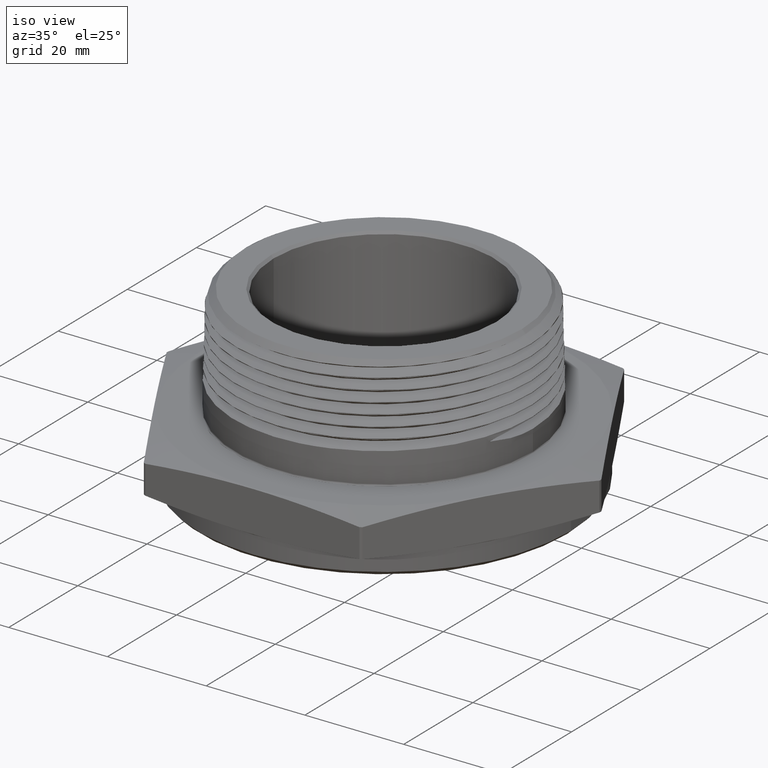
[diagram: clean part render]
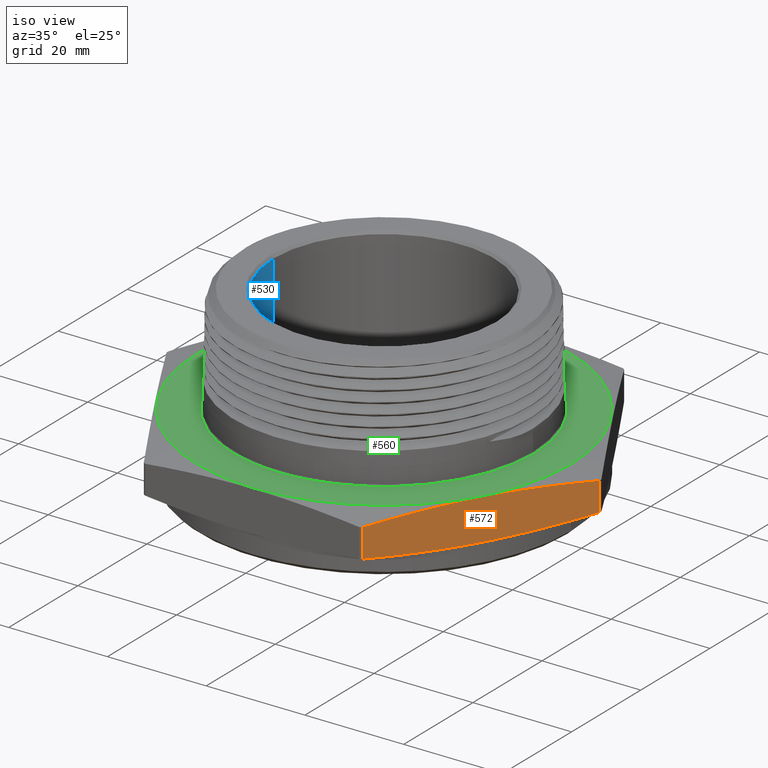
[diagram: same view with three faces highlighted in distinct colors, each labeled with its STEP entity id]
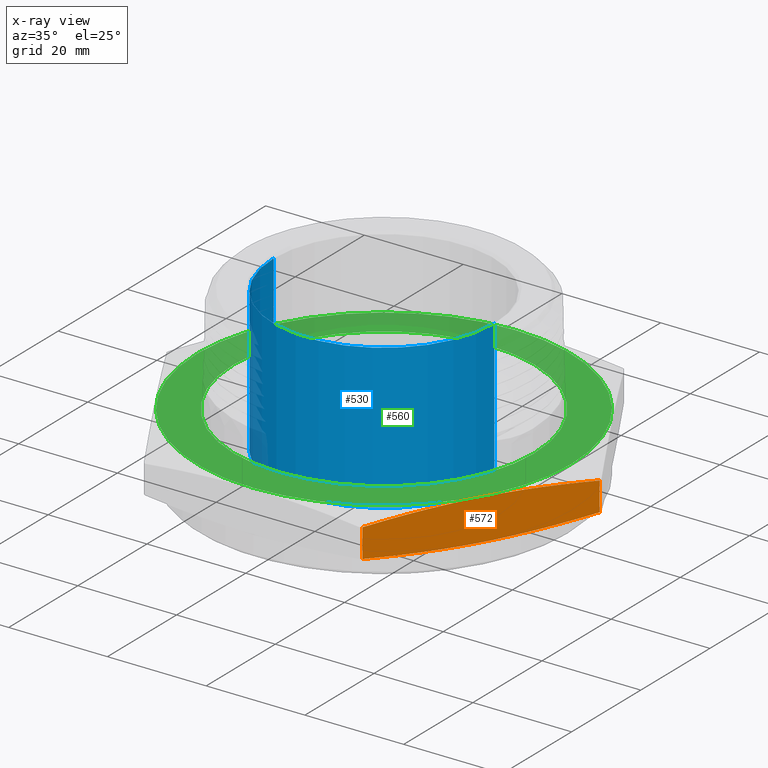
[diagram: x-ray of the same camera — body ghosted, the three highlighted faces saturated]
A machine part, iso view with three faces highlighted in distinct colors.
The next image is the same camera in x-ray (body ghosted, the three faces saturated) — at least one of them is partly hidden behind the body in this view.
Their STEP definitions:

[orange] entity #572 — the highlighted planar face has unit normal (-0.866, 0.5, 0).
#526 = VERTEX_POINT ( 'NONE', #7903 ) ;
#572 = ADVANCED_FACE ( 'NONE', ( #5911 ), #7051, .F. ) ;
#727 = EDGE_LOOP ( 'NONE', ( #6140, #6125, #6128, #6189 ) ) ;
#1537 = CARTESIAN_POINT ( 'NONE',  ( 0.8720570199394853700, -1.489552934367705000, 0.05017414803627098100 ) ) ;
#1539 = CARTESIAN_POINT ( 'NONE',  ( 0.8720570199394853700, -1.489552934367705000, 0.2798258519637287200 ) ) ;
#1540 = CARTESIAN_POINT ( 'NONE',  ( 1.726019191413829900, -0.01044706563229453500, 0.05017414803627055100 ) ) ;
#3600 = EDGE_CURVE ( 'NONE', #6295, #6293, #5953, .T. ) ;
#3605 = EDGE_CURVE ( 'NONE', #6296, #526, #5959, .T. ) ;
#3613 = EDGE_CURVE ( 'NONE', #526, #6295, #7774, .T. ) ;
#3614 = EDGE_CURVE ( 'NONE', #6293, #6296, #7775, .T. ) ;
#3749 = AXIS2_PLACEMENT_3D ( 'NONE', #7050, #7045, #7041 ) ;
#5911 = FACE_OUTER_BOUND ( 'NONE', #727, .T. ) ;
#5953 = LINE ( 'NONE', #7356, #5955 ) ;
#5955 = VECTOR ( 'NONE', #7354, 39.37007874015748100 ) ;
#5959 = LINE ( 'NONE', #7370, #5963 ) ;
#5963 = VECTOR ( 'NONE', #7366, 39.37007874015748100 ) ;
#6125 = ORIENTED_EDGE ( 'NONE', *, *, #3605, .T. ) ;
#6128 = ORIENTED_EDGE ( 'NONE', *, *, #3613, .T. ) ;
#6140 = ORIENTED_EDGE ( 'NONE', *, *, #3614, .T. ) ;
#6189 = ORIENTED_EDGE ( 'NONE', *, *, #3600, .T. ) ;
#6293 = VERTEX_POINT ( 'NONE', #1537 ) ;
#6295 = VERTEX_POINT ( 'NONE', #1539 ) ;
#6296 = VERTEX_POINT ( 'NONE', #1540 ) ;
#7041 = DIRECTION ( 'NONE',  ( -0.5000000000000000000, -0.8660254037844386000, 0.0000000000000000000 ) ) ;
#7045 = DIRECTION ( 'NONE',  ( -0.8660254037844387100, 0.5000000000000001100, 0.0000000000000000000 ) ) ;
#7050 = CARTESIAN_POINT ( 'NONE',  ( 0.8660254037844384900, -1.499999999999999600, 0.3300000000000000200 ) ) ;
#7051 = PLANE ( 'NONE',  #3749 ) ;
#7354 = DIRECTION ( 'NONE',  ( -1.254986547952384500E-016, -0.0000000000000000000, -1.000000000000000000 ) ) ;
#7356 = CARTESIAN_POINT ( 'NONE',  ( 0.8720570199394853700, -1.489552934367705000, 5.358555188302549400E-017 ) ) ;
#7366 = DIRECTION ( 'NONE',  ( 1.254986547952384500E-016, 0.0000000000000000000, 1.000000000000000000 ) ) ;
#7370 = CARTESIAN_POINT ( 'NONE',  ( 1.726019191413829900, -0.01044706563229453500, -5.358555188302549400E-017 ) ) ;
#7386 = CARTESIAN_POINT ( 'NONE',  ( 1.726019191413829900, -0.01044706563229453500, 0.2798258519637286700 ) ) ;
#7396 = CARTESIAN_POINT ( 'NONE',  ( 1.654855677124301000, -0.1337058880269122500, 0.2947932723352764100 ) ) ;
#7404 = CARTESIAN_POINT ( 'NONE',  ( 0.9432205342290142000, -1.366294111973088000, 0.03520672766472290900 ) ) ;
#7406 = CARTESIAN_POINT ( 'NONE',  ( 1.014384048518542900, -1.243035289578470200, 0.02307374582524318900 ) ) ;
#7407 = CARTESIAN_POINT ( 'NONE',  ( 1.583692162834772700, -0.2569647104215296300, 0.3069262541747560000 ) ) ;
#7408 = CARTESIAN_POINT ( 'NONE',  ( 1.441365134255714800, -0.5034823552107645700, 0.3234912303191853100 ) ) ;
#7409 = CARTESIAN_POINT ( 'NONE',  ( 1.299038105676656700, -0.7499999999999996700, 0.3322576384474138500 ) ) ;
#7410 = CARTESIAN_POINT ( 'NONE',  ( 1.156711077097599900, -0.9965176447892344400, 0.3234912303191854700 ) ) ;
#7411 = CARTESIAN_POINT ( 'NONE',  ( 1.014384048518542900, -1.243035289578469500, 0.3069262541747560500 ) ) ;
#7412 = CARTESIAN_POINT ( 'NONE',  ( 0.9432205342290138600, -1.366294111973087100, 0.2947932723352763000 ) ) ;
#7413 = CARTESIAN_POINT ( 'NONE',  ( 0.8720570199394853700, -1.489552934367705000, 0.2798258519637287200 ) ) ;
#7414 = CARTESIAN_POINT ( 'NONE',  ( 0.8720570199394853700, -1.489552934367705000, 0.05017414803627098100 ) ) ;
#7416 = CARTESIAN_POINT ( 'NONE',  ( 1.156711077097600300, -0.9965176447892351000, 0.006508769680813815200 ) ) ;
#7417 = CARTESIAN_POINT ( 'NONE',  ( 1.299038105676657800, -0.7499999999999996700, -0.002257638447414727400 ) ) ;
#7418 = CARTESIAN_POINT ( 'NONE',  ( 1.441365134255715000, -0.5034823552107650100, 0.006508769680813745800 ) ) ;
#7419 = CARTESIAN_POINT ( 'NONE',  ( 1.583692162834772200, -0.2569647104215300200, 0.02307374582524308200 ) ) ;
#7420 = CARTESIAN_POINT ( 'NONE',  ( 1.654855677124301000, -0.1337058880269123800, 0.03520672766472282600 ) ) ;
#7421 = CARTESIAN_POINT ( 'NONE',  ( 1.726019191413829900, -0.01044706563229453500, 0.05017414803627055100 ) ) ;
#7774 = B_SPLINE_CURVE_WITH_KNOTS ( 'NONE', 3,
 ( #7386, #7396, #7407, #7408, #7409, #7410, #7411, #7412, #7413 ),
 .UNSPECIFIED., .F., .F.,
 ( 4, 2, 1, 2, 4 ),
 ( 1.901761468285938300E-006, 0.01084722133919245900, 0.02169254091691663300, 0.03253786049464079500, 0.04338318007236498200 ),
 .UNSPECIFIED. ) ;
#7775 = B_SPLINE_CURVE_WITH_KNOTS ( 'NONE', 3,
 ( #7414, #7404, #7406, #7416, #7417, #7418, #7419, #7420, #7421 ),
 .UNSPECIFIED., .F., .F.,
 ( 4, 2, 1, 2, 4 ),
 ( 1.901761468408008900E-006, 0.01084722133919258100, 0.02169254091691675400, 0.03253786049464092700, 0.04338318007236510000 ),
 .UNSPECIFIED. ) ;
#7903 = CARTESIAN_POINT ( 'NONE',  ( 1.726019191413829900, -0.01044706563229453500, 0.2798258519637286700 ) ) ;

[blue] entity #530 — the highlighted cylindrical surface (partial cylindrical patch) has radius 22.352 mm, axis along (-0, -0, -1).
#530 = ADVANCED_FACE ( 'NONE', ( #817 ), #819, .F. ) ;
#597 = VERTEX_POINT ( 'NONE', #7019 ) ;
#635 = VERTEX_POINT ( 'NONE', #6973 ) ;
#636 = VERTEX_POINT ( 'NONE', #6972 ) ;
#641 = VERTEX_POINT ( 'NONE', #6967 ) ;
#771 = EDGE_LOOP ( 'NONE', ( #775, #776, #777, #778 ) ) ;
#775 = ORIENTED_EDGE ( 'NONE', *, *, #3695, .F. ) ;
#776 = ORIENTED_EDGE ( 'NONE', *, *, #3702, .T. ) ;
#777 = ORIENTED_EDGE ( 'NONE', *, *, #3700, .T. ) ;
#778 = ORIENTED_EDGE ( 'NONE', *, *, #3699, .F. ) ;
#817 = FACE_OUTER_BOUND ( 'NONE', #771, .T. ) ;
#819 = CYLINDRICAL_SURFACE ( 'NONE', #3709, 0.8799999999999998900 ) ;
#3695 = EDGE_CURVE ( 'NONE', #597, #641, #6051, .T. ) ;
#3699 = EDGE_CURVE ( 'NONE', #641, #636, #6064, .T. ) ;
#3700 = EDGE_CURVE ( 'NONE', #635, #636, #6065, .T. ) ;
#3702 = EDGE_CURVE ( 'NONE', #597, #635, #6068, .T. ) ;
#3709 = AXIS2_PLACEMENT_3D ( 'NONE', #7890, #7898, #7889 ) ;
#3798 = AXIS2_PLACEMENT_3D ( 'NONE', #6857, #6858, #6859 ) ;
#3801 = AXIS2_PLACEMENT_3D ( 'NONE', #6872, #6873, #6874 ) ;
#6051 = CIRCLE ( 'NONE', #3798, 0.8799999999999998900 ) ;
#6064 = LINE ( 'NONE', #6860, #6066 ) ;
#6065 = CIRCLE ( 'NONE', #3801, 0.8800000000000000000 ) ;
#6066 = VECTOR ( 'NONE', #6861, 39.37007874015748100 ) ;
#6068 = LINE ( 'NONE', #6875, #6071 ) ;
#6071 = VECTOR ( 'NONE', #6876, 39.37007874015748100 ) ;
#6857 = CARTESIAN_POINT ( 'NONE',  ( 4.915035497091496200E-017, 0.0000000000000000000, 1.179999999999999900 ) ) ;
#6858 = DIRECTION ( 'NONE',  ( -3.343854012755361800E-017, -0.0000000000000000000, -1.000000000000000000 ) ) ;
#6859 = DIRECTION ( 'NONE',  ( -1.000000000000000000, 0.0000000000000000000, 0.0000000000000000000 ) ) ;
#6860 = CARTESIAN_POINT ( 'NONE',  ( -0.8799999999999998900, 0.0000000000000000000, -0.1799999999999999700 ) ) ;
#6861 = DIRECTION ( 'NONE',  ( -3.343854012755361800E-017, -0.0000000000000000000, -1.000000000000000000 ) ) ;
#6872 = CARTESIAN_POINT ( 'NONE',  ( 1.059071558760608600E-017, 0.0000000000000000000, 0.02685039370078738000 ) ) ;
#6873 = DIRECTION ( 'NONE',  ( -3.343854012755361800E-017, -0.0000000000000000000, -1.000000000000000000 ) ) ;
#6874 = DIRECTION ( 'NONE',  ( -1.000000000000000000, 0.0000000000000000000, 3.395407662579872400E-017 ) ) ;
#6875 = CARTESIAN_POINT ( 'NONE',  ( 0.8799999999999998900, 1.077689183249670700E-016, -0.1800000000000000200 ) ) ;
#6876 = DIRECTION ( 'NONE',  ( -3.343854012755361800E-017, -0.0000000000000000000, -1.000000000000000000 ) ) ;
#6967 = CARTESIAN_POINT ( 'NONE',  ( -0.8799999999999998900, 0.0000000000000000000, 1.179999999999999900 ) ) ;
#6972 = CARTESIAN_POINT ( 'NONE',  ( -0.8800000000000000000, 0.0000000000000000000, 0.02685039370078741100 ) ) ;
#6973 = CARTESIAN_POINT ( 'NONE',  ( 0.8800000000000000000, 1.077689183249671000E-016, 0.02685039370078735200 ) ) ;
#7019 = CARTESIAN_POINT ( 'NONE',  ( 0.8799999999999998900, 1.077689183249670700E-016, 1.179999999999999900 ) ) ;
#7889 = DIRECTION ( 'NONE',  ( -1.000000000000000000, 0.0000000000000000000, 3.880465900091283700E-017 ) ) ;
#7890 = CARTESIAN_POINT ( 'NONE',  ( 3.673940397442043800E-018, 0.0000000000000000000, -0.1799999999999999900 ) ) ;
#7898 = DIRECTION ( 'NONE',  ( -3.343854012755361800E-017, -0.0000000000000000000, -1.000000000000000000 ) ) ;

[green] entity #560 — the highlighted planar face has unit normal (-0, 0, 1).
#505 = ORIENTED_EDGE ( 'NONE', *, *, #3592, .F. ) ;
#509 = ORIENTED_EDGE ( 'NONE', *, *, #3652, .F. ) ;
#513 = ORIENTED_EDGE ( 'NONE', *, *, #3593, .T. ) ;
#520 = ORIENTED_EDGE ( 'NONE', *, *, #3671, .T. ) ;
#560 = ADVANCED_FACE ( 'NONE', ( #5894, #5896 ), #7086, .T. ) ;
#587 = VERTEX_POINT ( 'NONE', #7039 ) ;
#608 = VERTEX_POINT ( 'NONE', #7003 ) ;
#639 = VERTEX_POINT ( 'NONE', #6969 ) ;
#644 = VERTEX_POINT ( 'NONE', #6964 ) ;
#739 = EDGE_LOOP ( 'NONE', ( #520, #513 ) ) ;
#743 = EDGE_LOOP ( 'NONE', ( #509, #505 ) ) ;
#3592 = EDGE_CURVE ( 'NONE', #608, #639, #5942, .T. ) ;
#3593 = EDGE_CURVE ( 'NONE', #587, #644, #5943, .T. ) ;
#3652 = EDGE_CURVE ( 'NONE', #639, #608, #6002, .T. ) ;
#3671 = EDGE_CURVE ( 'NONE', #644, #587, #6028, .T. ) ;
#3738 = AXIS2_PLACEMENT_3D ( 'NONE', #7088, #7089, #7084 ) ;
#3753 = AXIS2_PLACEMENT_3D ( 'NONE', #7338, #7339, #7340 ) ;
#3754 = AXIS2_PLACEMENT_3D ( 'NONE', #7341, #7342, #7343 ) ;
#3773 = AXIS2_PLACEMENT_3D ( 'NONE', #6702, #6703, #6704 ) ;
#3785 = AXIS2_PLACEMENT_3D ( 'NONE', #6774, #6775, #6776 ) ;
#5894 = FACE_OUTER_BOUND ( 'NONE', #743, .T. ) ;
#5896 = FACE_BOUND ( 'NONE', #739, .T. ) ;
#5942 = CIRCLE ( 'NONE', #3753, 1.490000000000000400 ) ;
#5943 = CIRCLE ( 'NONE', #3754, 1.197500000000000200 ) ;
#6002 = CIRCLE ( 'NONE', #3773, 1.490000000000000400 ) ;
#6028 = CIRCLE ( 'NONE', #3785, 1.197500000000000200 ) ;
#6702 = CARTESIAN_POINT ( 'NONE',  ( 4.141455608242866600E-017, 0.0000000000000000000, 0.3299999999999998500 ) ) ;
#6703 = DIRECTION ( 'NONE',  ( -1.254986547952384500E-016, -0.0000000000000000000, -1.000000000000000000 ) ) ;
#6704 = DIRECTION ( 'NONE',  ( -1.000000000000000000, 0.0000000000000000000, 1.375091271978655600E-016 ) ) ;
#6774 = CARTESIAN_POINT ( 'NONE',  ( 0.0000000000000000000, 0.0000000000000000000, 0.3300000000000000200 ) ) ;
#6775 = DIRECTION ( 'NONE',  ( 0.0000000000000000000, -0.0000000000000000000, -1.000000000000000000 ) ) ;
#6776 = DIRECTION ( 'NONE',  ( 1.000000000000000000, 0.0000000000000000000, 0.0000000000000000000 ) ) ;
#6964 = CARTESIAN_POINT ( 'NONE',  ( 1.197500000000000200, 0.0000000000000000000, 0.3300000000000000200 ) ) ;
#6969 = CARTESIAN_POINT ( 'NONE',  ( -1.490000000000000400, 0.0000000000000000000, 0.3300000000000000200 ) ) ;
#7003 = CARTESIAN_POINT ( 'NONE',  ( 1.490000000000000400, 1.824723730729556900E-016, 0.3299999999999996300 ) ) ;
#7039 = CARTESIAN_POINT ( 'NONE',  ( -1.197500000000000200, 1.466514541978955900E-016, 0.3300000000000000200 ) ) ;
#7084 = DIRECTION ( 'NONE',  ( 1.000000000000000000, 0.0000000000000000000, 0.0000000000000000000 ) ) ;
#7086 = PLANE ( 'NONE',  #3738 ) ;
#7088 = CARTESIAN_POINT ( 'NONE',  ( -0.8660254037844384900, -1.499999999999999800, 0.3300000000000000200 ) ) ;
#7089 = DIRECTION ( 'NONE',  ( -0.0000000000000000000, 0.0000000000000000000, 1.000000000000000000 ) ) ;
#7338 = CARTESIAN_POINT ( 'NONE',  ( 4.141455608242866600E-017, 0.0000000000000000000, 0.3299999999999998500 ) ) ;
#7339 = DIRECTION ( 'NONE',  ( -1.254986547952384500E-016, -0.0000000000000000000, -1.000000000000000000 ) ) ;
#7340 = DIRECTION ( 'NONE',  ( -1.000000000000000000, 0.0000000000000000000, 1.375091271978655600E-016 ) ) ;
#7341 = CARTESIAN_POINT ( 'NONE',  ( 0.0000000000000000000, 0.0000000000000000000, 0.3300000000000000200 ) ) ;
#7342 = DIRECTION ( 'NONE',  ( 0.0000000000000000000, -0.0000000000000000000, -1.000000000000000000 ) ) ;
#7343 = DIRECTION ( 'NONE',  ( 1.000000000000000000, 0.0000000000000000000, 0.0000000000000000000 ) ) ;